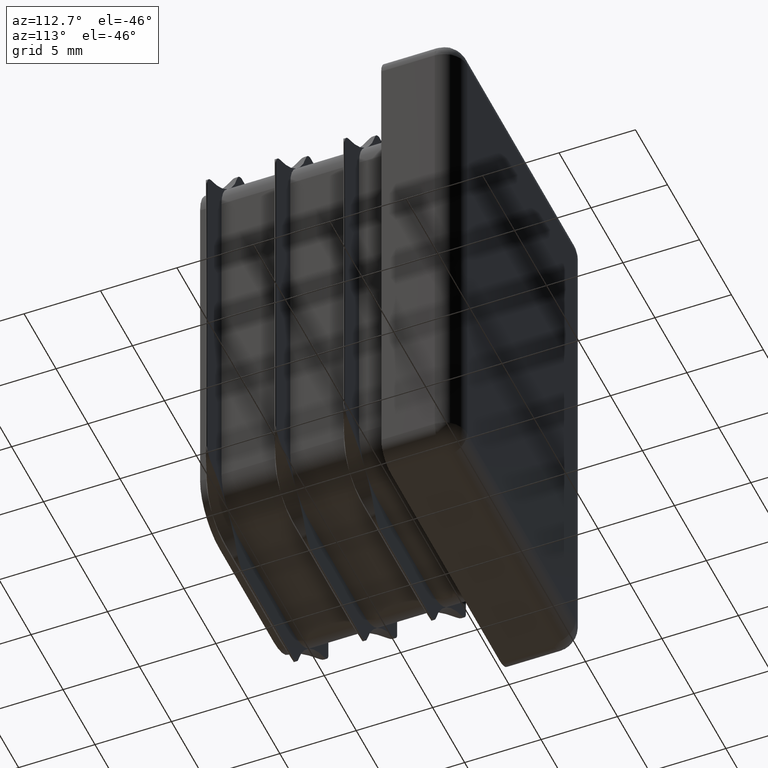
[diagram: clean part render]
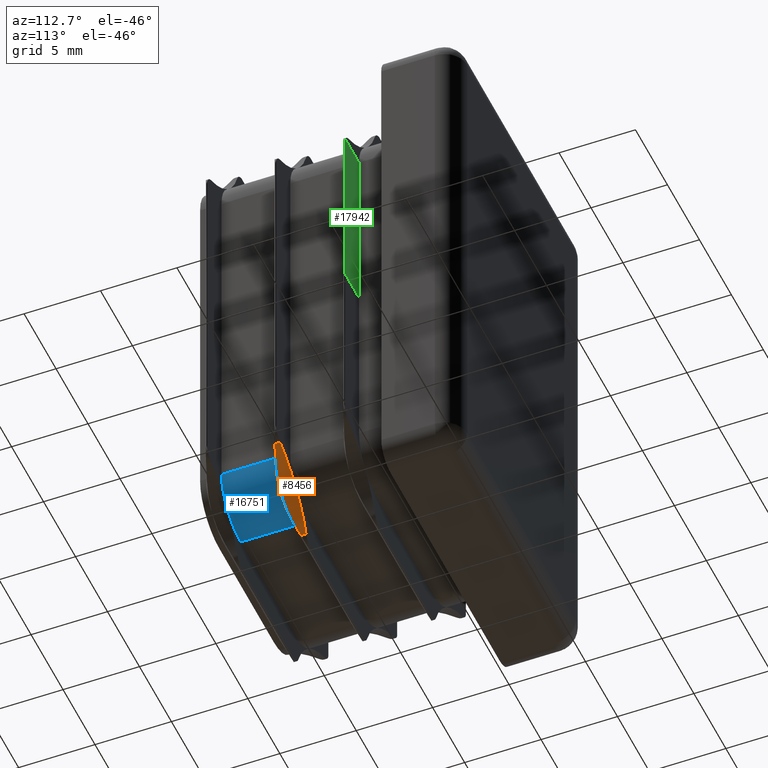
[diagram: same view with three faces highlighted in distinct colors, each labeled with its STEP entity id]
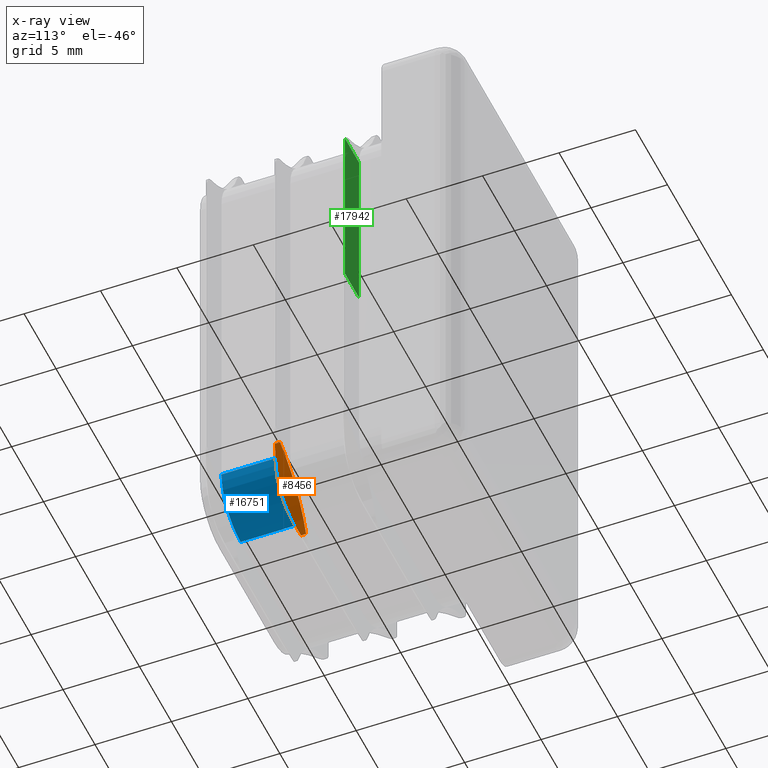
[diagram: x-ray of the same camera — body ghosted, the three highlighted faces saturated]
A machine part, auxiliary view with three faces highlighted in distinct colors.
The next image is the same camera in x-ray (body ghosted, the three faces saturated) — at least one of them is partly hidden behind the body in this view.
Their STEP definitions:

[orange] entity #8456 — the highlighted cylindrical surface (partial cylindrical patch) has radius 7 mm, axis along (-0, -1, -0).
#89 = EDGE_CURVE ( 'NONE', #2484, #15928, #13224, .T. ) ;
#92 = CARTESIAN_POINT ( 'NONE',  ( 8.852633476483271480, -7.435322866118646346, -12.27073713838751701 ) ) ;
#354 = EDGE_LOOP ( 'NONE', ( #508, #12680, #2556, #14543, #2120, #9067 ) ) ;
#415 = LINE ( 'NONE', #18366, #3779 ) ;
#508 = ORIENTED_EDGE ( 'NONE', *, *, #19200, .F. ) ;
#2019 = B_SPLINE_CURVE_WITH_KNOTS ( 'NONE', 3,
 ( #4388, #13391, #16429, #2664, #2860, #7349, #10284, #17938 ),
 .UNSPECIFIED., .F., .F.,
 ( 4, 2, 2, 4 ),
 ( 2.238089943604421857E-07, 0.001520673063021960644, 0.002280897690035762516, 0.003041122317049564823 ),
 .UNSPECIFIED. ) ;
#2120 = ORIENTED_EDGE ( 'NONE', *, *, #14842, .F. ) ;
#2484 = VERTEX_POINT ( 'NONE', #17301 ) ;
#2556 = ORIENTED_EDGE ( 'NONE', *, *, #89, .F. ) ;
#2664 = CARTESIAN_POINT ( 'NONE',  ( 5.554164716619261810, -7.955987635711759154, -14.84571917385938811 ) ) ;
#2860 = CARTESIAN_POINT ( 'NONE',  ( 5.699225903546090599, -8.007799718867103067, -14.64252119764961435 ) ) ;
#3113 = VERTEX_POINT ( 'NONE', #19024 ) ;
#3203 = DIRECTION ( 'NONE',  ( -0.000000000000000000, -1.000000000000000000, -0.000000000000000000 ) ) ;
#3249 = AXIS2_PLACEMENT_3D ( 'NONE', #7647, #15268, #4610 ) ;
#3397 = DIRECTION ( 'NONE',  ( 0.000000000000000000, 0.000000000000000000, -1.000000000000000000 ) ) ;
#3779 = VECTOR ( 'NONE', #9291, 1000.000000000000000 ) ;
#4388 = CARTESIAN_POINT ( 'NONE',  ( 4.770737138387518783, -7.435322866118646346, -16.35263347648326615 ) ) ;
#4390 = FACE_OUTER_BOUND ( 'NONE', #354, .T. ) ;
#4610 = DIRECTION ( 'NONE',  ( 0.000000000000000000, 0.000000000000000000, -1.000000000000000000 ) ) ;
#4813 = CIRCLE ( 'NONE', #5072, 7.000000000000002665 ) ;
#5072 = AXIS2_PLACEMENT_3D ( 'NONE', #5292, #9835, #11345 ) ;
#5167 = CARTESIAN_POINT ( 'NONE',  ( 8.400585509619972413, -7.610465208568886197, -12.44108742729170913 ) ) ;
#5292 = CARTESIAN_POINT ( 'NONE',  ( 11.32106781186548083, -7.100000000000000533, -18.82106781186547551 ) ) ;
#5373 = CARTESIAN_POINT ( 'NONE',  ( 7.341888641781866731, -7.957030301752659796, -13.05677899811374765 ) ) ;
#5704 = VERTEX_POINT ( 'NONE', #12490 ) ;
#6920 = CARTESIAN_POINT ( 'NONE',  ( 6.740053755725694984, -8.080900505225139696, -13.52208695203986011 ) ) ;
#6943 = CARTESIAN_POINT ( 'NONE',  ( 8.852633476483271480, 8.011554318414338738, -12.27073713838751701 ) ) ;
#7349 = CARTESIAN_POINT ( 'NONE',  ( 6.019012735666530389, -8.080480645150723618, -14.24356082462187878 ) ) ;
#7619 = VECTOR ( 'NONE', #15891, 1000.000000000000000 ) ;
#7647 = CARTESIAN_POINT ( 'NONE',  ( 11.32106781186548083, -7.100000000000000533, -18.82106781186547551 ) ) ;
#8456 = ADVANCED_FACE ( 'NONE', ( #4390 ), #11070, .F. ) ;
#8735 = EDGE_CURVE ( 'NONE', #17188, #3113, #2019, .T. ) ;
#9067 = ORIENTED_EDGE ( 'NONE', *, *, #8735, .F. ) ;
#9291 = DIRECTION ( 'NONE',  ( -0.000000000000000000, -1.000000000000000000, -0.000000000000000000 ) ) ;
#9835 = DIRECTION ( 'NONE',  ( -0.000000000000000000, -1.000000000000000000, -0.000000000000000000 ) ) ;
#9933 = EDGE_CURVE ( 'NONE', #15928, #5704, #4813, .T. ) ;
#10284 = CARTESIAN_POINT ( 'NONE',  ( 6.190894576864646837, -8.100000000000019185, -14.05174611025464237 ) ) ;
#11070 = CYLINDRICAL_SURFACE ( 'NONE', #16374, 7.000000000000002665 ) ;
#11345 = DIRECTION ( 'NONE',  ( 0.000000000000000000, 0.000000000000000000, -1.000000000000000000 ) ) ;
#11452 = CARTESIAN_POINT ( 'NONE',  ( 7.965556158916291984, -7.772157110577886385, -12.65794270111164188 ) ) ;
#11964 = VERTEX_POINT ( 'NONE', #92 ) ;
#12490 = CARTESIAN_POINT ( 'NONE',  ( 4.770737138387518783, -7.099999999999996980, -16.35263347648326615 ) ) ;
#12680 = ORIENTED_EDGE ( 'NONE', *, *, #9933, .F. ) ;
#13224 = CIRCLE ( 'NONE', #3249, 7.000000000000002665 ) ;
#13391 = CARTESIAN_POINT ( 'NONE',  ( 4.941407659551110498, -7.610794449149023144, -15.89973572918983180 ) ) ;
#13662 = B_SPLINE_CURVE_WITH_KNOTS ( 'NONE', 3,
 ( #15809, #17383, #6920, #15938, #5373, #11452, #5167, #17239 ),
 .UNSPECIFIED., .F., .F.,
 ( 4, 2, 2, 4 ),
 ( 0.003041122317049564823, 0.003798055884736200368, 0.004554989452422835913, 0.006068856587796112208 ),
 .UNSPECIFIED. ) ;
#14047 = CARTESIAN_POINT ( 'NONE',  ( 6.371320343559678356, -7.099999999999999645, -13.87132034355967569 ) ) ;
#14543 = ORIENTED_EDGE ( 'NONE', *, *, #17930, .T. ) ;
#14842 = EDGE_CURVE ( 'NONE', #3113, #11964, #13662, .T. ) ;
#15268 = DIRECTION ( 'NONE',  ( -0.000000000000000000, -1.000000000000000000, -0.000000000000000000 ) ) ;
#15809 = CARTESIAN_POINT ( 'NONE',  ( 6.371320343559643717, -8.100000000000017408, -13.87132034355964194 ) ) ;
#15891 = DIRECTION ( 'NONE',  ( -0.000000000000000000, -1.000000000000000000, -0.000000000000000000 ) ) ;
#15928 = VERTEX_POINT ( 'NONE', #14047 ) ;
#15938 = CARTESIAN_POINT ( 'NONE',  ( 7.137321931227677219, -8.008961197122289377, -13.20313595560424602 ) ) ;
#16374 = AXIS2_PLACEMENT_3D ( 'NONE', #18382, #3203, #3397 ) ;
#16429 = CARTESIAN_POINT ( 'NONE',  ( 5.156745369772174570, -7.771259703439281630, -15.46794967429056733 ) ) ;
#16712 = CARTESIAN_POINT ( 'NONE',  ( 4.770737138387518783, -7.435322866118646346, -16.35263347648326615 ) ) ;
#17188 = VERTEX_POINT ( 'NONE', #16712 ) ;
#17239 = CARTESIAN_POINT ( 'NONE',  ( 8.852633476483271480, -7.435322866118646346, -12.27073713838751701 ) ) ;
#17301 = CARTESIAN_POINT ( 'NONE',  ( 8.852633476483271480, -7.099999999999996980, -12.27073713838751701 ) ) ;
#17383 = CARTESIAN_POINT ( 'NONE',  ( 6.550965035975748307, -8.100000000000017408, -13.69167565114353735 ) ) ;
#17930 = EDGE_CURVE ( 'NONE', #2484, #11964, #19720, .T. ) ;
#17938 = CARTESIAN_POINT ( 'NONE',  ( 6.371320343559643717, -8.100000000000017408, -13.87132034355964194 ) ) ;
#18366 = CARTESIAN_POINT ( 'NONE',  ( 4.770737138387518783, 8.011554318414338738, -16.35263347648326615 ) ) ;
#18382 = CARTESIAN_POINT ( 'NONE',  ( 11.32106781186548083, 8.011554318414338738, -18.82106781186547551 ) ) ;
#19024 = CARTESIAN_POINT ( 'NONE',  ( 6.371320343559643717, -8.100000000000017408, -13.87132034355964194 ) ) ;
#19200 = EDGE_CURVE ( 'NONE', #5704, #17188, #415, .T. ) ;
#19720 = LINE ( 'NONE', #6943, #7619 ) ;

[blue] entity #16751 — the highlighted cylindrical surface (partial cylindrical patch) has radius 3 mm, axis along (-0, 1, -0).
#113 = ORIENTED_EDGE ( 'NONE', *, *, #6792, .F. ) ;
#304 = CIRCLE ( 'NONE', #15023, 3.000000000000091926 ) ;
#331 = DIRECTION ( 'NONE',  ( 0.000000000000000000, 1.000000000000000000, 0.000000000000000000 ) ) ;
#345 = AXIS2_PLACEMENT_3D ( 'NONE', #14046, #331, #3451 ) ;
#478 = CARTESIAN_POINT ( 'NONE',  ( 4.250000000000004441, -11.59999999999999964, -11.75000000000000178 ) ) ;
#1106 = EDGE_CURVE ( 'NONE', #3471, #5688, #4834, .T. ) ;
#1111 = CARTESIAN_POINT ( 'NONE',  ( 7.250000000000004441, -8.100000000000019185, -11.75000000000000000 ) ) ;
#1441 = EDGE_CURVE ( 'NONE', #8609, #3471, #304, .T. ) ;
#1644 = CARTESIAN_POINT ( 'NONE',  ( 4.250000000000004441, -11.59999999999999964, -14.75000000000009237 ) ) ;
#2008 = DIRECTION ( 'NONE',  ( 0.000000000000000000, 1.000000000000000000, 0.000000000000000000 ) ) ;
#2285 = DIRECTION ( 'NONE',  ( -0.000000000000000000, 1.000000000000000000, -0.000000000000000000 ) ) ;
#3040 = VERTEX_POINT ( 'NONE', #5204 ) ;
#3106 = DIRECTION ( 'NONE',  ( 0.000000000000000000, 1.000000000000000000, 0.000000000000000000 ) ) ;
#3113 = VERTEX_POINT ( 'NONE', #19024 ) ;
#3331 = DIRECTION ( 'NONE',  ( 1.000000000000000000, 0.000000000000000000, -1.156482317317836029E-15 ) ) ;
#3339 = CARTESIAN_POINT ( 'NONE',  ( 4.250000000000004441, -8.099999999999999645, -11.75000000000000178 ) ) ;
#3402 = DIRECTION ( 'NONE',  ( 1.000000000000000000, 0.000000000000000000, -1.156482317317855553E-15 ) ) ;
#3451 = DIRECTION ( 'NONE',  ( 1.000000000000000000, 0.000000000000000000, -1.156482317317836029E-15 ) ) ;
#3471 = VERTEX_POINT ( 'NONE', #12701 ) ;
#3847 = ORIENTED_EDGE ( 'NONE', *, *, #9202, .F. ) ;
#4096 = ORIENTED_EDGE ( 'NONE', *, *, #9826, .T. ) ;
#4631 = DIRECTION ( 'NONE',  ( 1.000000000000000000, 0.000000000000000000, -1.156482317317855553E-15 ) ) ;
#4834 = CIRCLE ( 'NONE', #345, 3.000000000000091926 ) ;
#5204 = CARTESIAN_POINT ( 'NONE',  ( 4.250000000000004441, -8.099999999999999645, -14.75000000000004263 ) ) ;
#5688 = VERTEX_POINT ( 'NONE', #1644 ) ;
#6509 = VECTOR ( 'NONE', #2285, 1000.000000000000000 ) ;
#6792 = EDGE_CURVE ( 'NONE', #19365, #3113, #17975, .T. ) ;
#7663 = FACE_OUTER_BOUND ( 'NONE', #8114, .T. ) ;
#8078 = CIRCLE ( 'NONE', #14461, 3.000000000000040856 ) ;
#8114 = EDGE_LOOP ( 'NONE', ( #17337, #113, #3847, #10506, #13285, #4096 ) ) ;
#8609 = VERTEX_POINT ( 'NONE', #12990 ) ;
#9072 = DIRECTION ( 'NONE',  ( -0.000000000000000000, 1.000000000000000000, -0.000000000000000000 ) ) ;
#9141 = DIRECTION ( 'NONE',  ( 0.000000000000000000, 0.000000000000000000, 1.000000000000000000 ) ) ;
#9202 = EDGE_CURVE ( 'NONE', #8609, #19365, #9400, .T. ) ;
#9400 = LINE ( 'NONE', #12276, #16728 ) ;
#9826 = EDGE_CURVE ( 'NONE', #5688, #3040, #17418, .T. ) ;
#10442 = CARTESIAN_POINT ( 'NONE',  ( 4.250000000000004441, -13.00000000000000000, -11.75000000000000178 ) ) ;
#10506 = ORIENTED_EDGE ( 'NONE', *, *, #1441, .T. ) ;
#12276 = CARTESIAN_POINT ( 'NONE',  ( 7.250000000000004441, -13.00000000000000000, -11.75000000000000000 ) ) ;
#12701 = CARTESIAN_POINT ( 'NONE',  ( 6.371320343559712995, -11.59999999999999964, -13.87132034355970767 ) ) ;
#12894 = CARTESIAN_POINT ( 'NONE',  ( 4.250000000000004441, -13.00000000000000000, -14.75000000000000000 ) ) ;
#12990 = CARTESIAN_POINT ( 'NONE',  ( 7.250000000000004441, -11.59999999999999964, -11.75000000000000000 ) ) ;
#13285 = ORIENTED_EDGE ( 'NONE', *, *, #1106, .T. ) ;
#14046 = CARTESIAN_POINT ( 'NONE',  ( 4.250000000000004441, -11.59999999999999964, -11.75000000000000178 ) ) ;
#14461 = AXIS2_PLACEMENT_3D ( 'NONE', #3339, #2008, #3402 ) ;
#15023 = AXIS2_PLACEMENT_3D ( 'NONE', #478, #15629, #3331 ) ;
#15476 = CARTESIAN_POINT ( 'NONE',  ( 4.250000000000004441, -8.099999999999999645, -11.75000000000000178 ) ) ;
#15629 = DIRECTION ( 'NONE',  ( 0.000000000000000000, 1.000000000000000000, 0.000000000000000000 ) ) ;
#15943 = CYLINDRICAL_SURFACE ( 'NONE', #19670, 2.999999999999999112 ) ;
#16728 = VECTOR ( 'NONE', #18226, 1000.000000000000000 ) ;
#16751 = ADVANCED_FACE ( 'NONE', ( #7663 ), #15943, .T. ) ;
#17337 = ORIENTED_EDGE ( 'NONE', *, *, #18880, .F. ) ;
#17418 = LINE ( 'NONE', #12894, #6509 ) ;
#17464 = AXIS2_PLACEMENT_3D ( 'NONE', #15476, #3106, #4631 ) ;
#17975 = CIRCLE ( 'NONE', #17464, 3.000000000000040856 ) ;
#18226 = DIRECTION ( 'NONE',  ( -0.000000000000000000, 1.000000000000000000, -0.000000000000000000 ) ) ;
#18880 = EDGE_CURVE ( 'NONE', #3113, #3040, #8078, .T. ) ;
#19024 = CARTESIAN_POINT ( 'NONE',  ( 6.371320343559643717, -8.100000000000017408, -13.87132034355964194 ) ) ;
#19365 = VERTEX_POINT ( 'NONE', #1111 ) ;
#19670 = AXIS2_PLACEMENT_3D ( 'NONE', #10442, #9072, #9141 ) ;

[green] entity #17942 — the highlighted planar face has unit normal (0, -1, -0).
#692 = DIRECTION ( 'NONE',  ( -0.000000000000000000, -1.000000000000000000, -0.000000000000000000 ) ) ;
#894 = ORIENTED_EDGE ( 'NONE', *, *, #7854, .F. ) ;
#1502 = EDGE_CURVE ( 'NONE', #18425, #16279, #16492, .T. ) ;
#1604 = LINE ( 'NONE', #15219, #2292 ) ;
#1747 = VECTOR ( 'NONE', #12474, 1000.000000000000000 ) ;
#2040 = ORIENTED_EDGE ( 'NONE', *, *, #15583, .F. ) ;
#2292 = VECTOR ( 'NONE', #18191, 1000.000000000000000 ) ;
#2333 = ORIENTED_EDGE ( 'NONE', *, *, #1502, .T. ) ;
#4095 = CARTESIAN_POINT ( 'NONE',  ( 9.409810287201452184, -2.600000000000000089, 11.75000000000000355 ) ) ;
#4433 = VERTEX_POINT ( 'NONE', #13099 ) ;
#5013 = ORIENTED_EDGE ( 'NONE', *, *, #13794, .F. ) ;
#5396 = CARTESIAN_POINT ( 'NONE',  ( 7.249999999999997335, -2.600000000000000089, 11.75000000000000178 ) ) ;
#5508 = EDGE_CURVE ( 'NONE', #14964, #18425, #1604, .T. ) ;
#6775 = CARTESIAN_POINT ( 'NONE',  ( 7.249999999999997335, -2.600000000000000089, 11.75000000000000178 ) ) ;
#7385 = LINE ( 'NONE', #13670, #9513 ) ;
#7854 = EDGE_CURVE ( 'NONE', #4433, #16279, #13222, .T. ) ;
#8557 = DIRECTION ( 'NONE',  ( 0.000000000000000000, 0.000000000000000000, -1.000000000000000000 ) ) ;
#8593 = FACE_OUTER_BOUND ( 'NONE', #17011, .T. ) ;
#9097 = CARTESIAN_POINT ( 'NONE',  ( 7.250000000000000888, -2.600000000000000089, 0.000000000000000000 ) ) ;
#9513 = VECTOR ( 'NONE', #15008, 1000.000000000000000 ) ;
#9629 = AXIS2_PLACEMENT_3D ( 'NONE', #17170, #692, #11235 ) ;
#9830 = CIRCLE ( 'NONE', #9629, 0.9999999999999991118 ) ;
#9841 = DIRECTION ( 'NONE',  ( 2.214540607629966587E-16, 0.000000000000000000, -1.000000000000000000 ) ) ;
#10406 = AXIS2_PLACEMENT_3D ( 'NONE', #5396, #16156, #8557 ) ;
#10767 = ORIENTED_EDGE ( 'NONE', *, *, #5508, .T. ) ;
#10844 = VECTOR ( 'NONE', #9841, 1000.000000000000000 ) ;
#11235 = DIRECTION ( 'NONE',  ( 0.000000000000000000, 0.000000000000000000, -1.000000000000000000 ) ) ;
#12474 = DIRECTION ( 'NONE',  ( -1.000000000000000000, 0.000000000000000000, 0.000000000000000000 ) ) ;
#12671 = CARTESIAN_POINT ( 'NONE',  ( 7.249999999999999112, -2.600000000000000089, 0.000000000000000000 ) ) ;
#12975 = PLANE ( 'NONE',  #10406 ) ;
#13099 = CARTESIAN_POINT ( 'NONE',  ( 7.249999999999997335, -2.600000000000003197, 11.75000000000000355 ) ) ;
#13222 = LINE ( 'NONE', #6775, #10844 ) ;
#13670 = CARTESIAN_POINT ( 'NONE',  ( 7.249999999999997335, -2.600000000000000089, 11.75000000000000355 ) ) ;
#13721 = VERTEX_POINT ( 'NONE', #4095 ) ;
#13794 = EDGE_CURVE ( 'NONE', #13721, #4433, #7385, .T. ) ;
#14964 = VERTEX_POINT ( 'NONE', #17767 ) ;
#15008 = DIRECTION ( 'NONE',  ( -1.000000000000000000, 0.000000000000000000, 0.000000000000000000 ) ) ;
#15219 = CARTESIAN_POINT ( 'NONE',  ( 9.450000000000002842, -2.600000000000000089, 11.75000000000000178 ) ) ;
#15583 = EDGE_CURVE ( 'NONE', #14964, #13721, #9830, .T. ) ;
#16156 = DIRECTION ( 'NONE',  ( 0.000000000000000000, -1.000000000000000000, -0.000000000000000000 ) ) ;
#16279 = VERTEX_POINT ( 'NONE', #9097 ) ;
#16492 = LINE ( 'NONE', #12671, #1747 ) ;
#17011 = EDGE_LOOP ( 'NONE', ( #2040, #10767, #2333, #894, #5013 ) ) ;
#17170 = CARTESIAN_POINT ( 'NONE',  ( 8.500000000000099476, -2.600000000000000089, 11.33497561360495176 ) ) ;
#17303 = CARTESIAN_POINT ( 'NONE',  ( 9.450000000000006395, -2.600000000000000089, 0.000000000000000000 ) ) ;
#17767 = CARTESIAN_POINT ( 'NONE',  ( 9.450000000000002842, -2.600000000000000089, 11.64722551352515900 ) ) ;
#17942 = ADVANCED_FACE ( 'NONE', ( #8593 ), #12975, .F. ) ;
#18191 = DIRECTION ( 'NONE',  ( 2.214540607629966587E-16, 0.000000000000000000, -1.000000000000000000 ) ) ;
#18425 = VERTEX_POINT ( 'NONE', #17303 ) ;